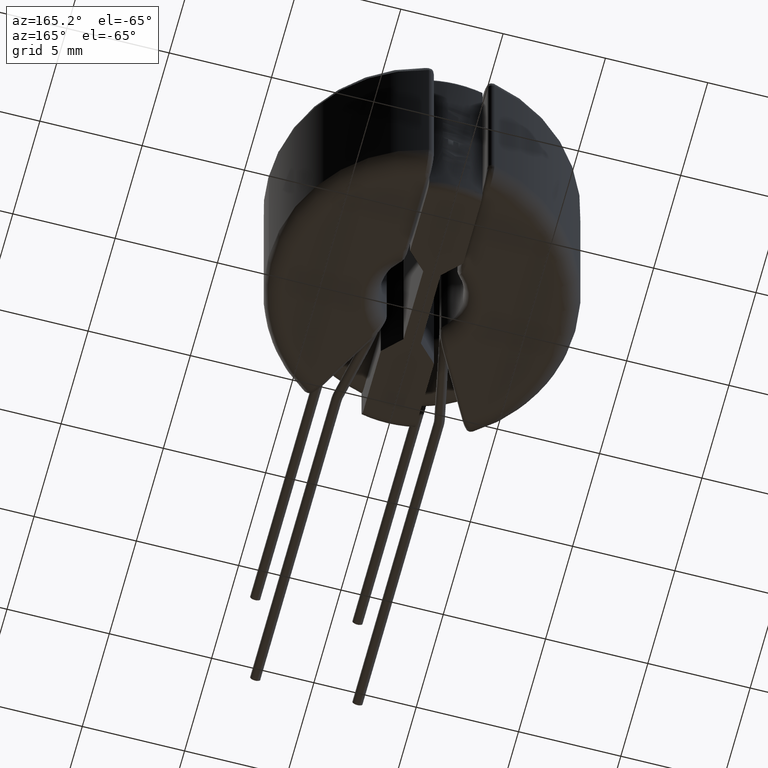
[diagram: clean part render]
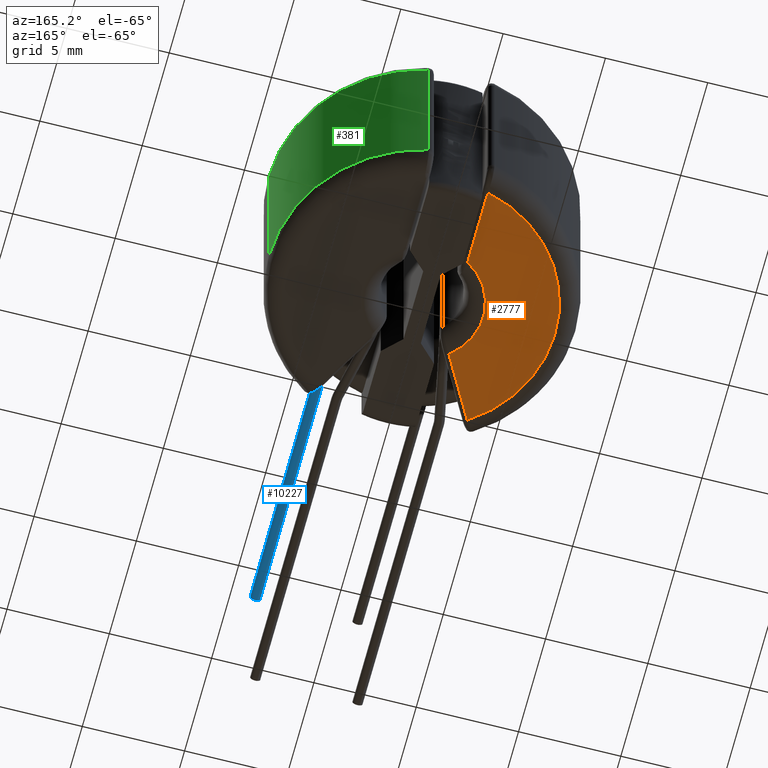
[diagram: same view with three faces highlighted in distinct colors, each labeled with its STEP entity id]
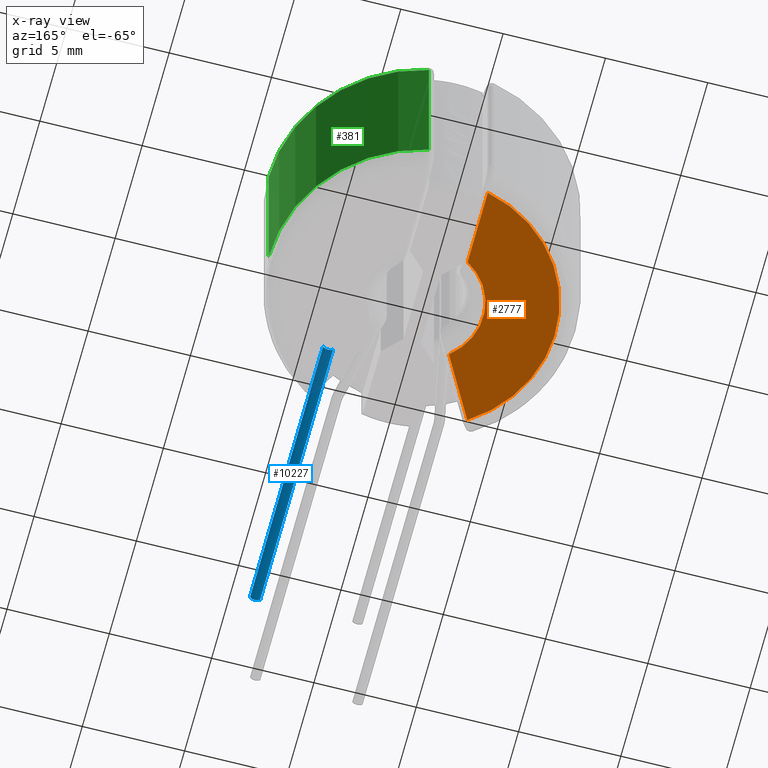
[diagram: x-ray of the same camera — body ghosted, the three highlighted faces saturated]
A machine part, auxiliary view with three faces highlighted in distinct colors.
The next image is the same camera in x-ray (body ghosted, the three faces saturated) — at least one of them is partly hidden behind the body in this view.
Their STEP definitions:

[orange] entity #2777 — the highlighted planar face has unit normal (0, 0, 1).
#20 = VERTEX_POINT ( 'NONE', #826 ) ;
#375 = LINE ( 'NONE', #8217, #747 ) ;
#610 = ORIENTED_EDGE ( 'NONE', *, *, #1816, .T. ) ;
#747 = VECTOR ( 'NONE', #7774, 1000.000000000000000 ) ;
#821 = DIRECTION ( 'NONE',  ( 0.0000000000000000000, 0.0000000000000000000, 1.000000000000000000 ) ) ;
#822 = DIRECTION ( 'NONE',  ( 1.000000000000000000, 0.0000000000000000000, 0.0000000000000000000 ) ) ;
#826 = CARTESIAN_POINT ( 'NONE',  ( -1.922783364836486708, -2.302803537410014645, -5.450000000000000178 ) ) ;
#945 = ORIENTED_EDGE ( 'NONE', *, *, #2721, .T. ) ;
#1296 = CARTESIAN_POINT ( 'NONE',  ( -1.549999999999996936, -1.841640399476882235E-16, -5.450000000000000178 ) ) ;
#1447 = CARTESIAN_POINT ( 'NONE',  ( 0.0000000000000000000, 0.0000000000000000000, -5.450000000000000178 ) ) ;
#1816 = EDGE_CURVE ( 'NONE', #7610, #20, #6987, .T. ) ;
#1830 = VECTOR ( 'NONE', #9563, 1000.000000000000000 ) ;
#1995 = AXIS2_PLACEMENT_3D ( 'NONE', #10670, #821, #4113 ) ;
#2490 = LINE ( 'NONE', #1296, #1830 ) ;
#2721 = EDGE_CURVE ( 'NONE', #20, #9626, #375, .T. ) ;
#2777 = ADVANCED_FACE ( 'NONE', ( #3998 ), #10179, .F. ) ;
#3650 = ORIENTED_EDGE ( 'NONE', *, *, #9175, .T. ) ;
#3835 = VERTEX_POINT ( 'NONE', #6445 ) ;
#3971 = DIRECTION ( 'NONE',  ( 1.000000000000000000, 0.0000000000000000000, -0.0000000000000000000 ) ) ;
#3998 = FACE_OUTER_BOUND ( 'NONE', #6889, .T. ) ;
#4079 = DIRECTION ( 'NONE',  ( -0.0000000000000000000, -0.0000000000000000000, -1.000000000000000000 ) ) ;
#4113 = DIRECTION ( 'NONE',  ( 1.000000000000000000, 0.0000000000000000000, 0.0000000000000000000 ) ) ;
#5363 = EDGE_CURVE ( 'NONE', #3835, #7610, #2490, .T. ) ;
#5477 = AXIS2_PLACEMENT_3D ( 'NONE', #6647, #4079, #822 ) ;
#6365 = AXIS2_PLACEMENT_3D ( 'NONE', #1447, #8059, #3971 ) ;
#6445 = CARTESIAN_POINT ( 'NONE',  ( -1.549999999999997602, 6.312487623750243415, -5.450000000000000178 ) ) ;
#6647 = CARTESIAN_POINT ( 'NONE',  ( 0.0000000000000000000, 0.0000000000000000000, -5.450000000000000178 ) ) ;
#6868 = CARTESIAN_POINT ( 'NONE',  ( -1.549999999999997158, 2.568559907808265930, -5.450000000000000178 ) ) ;
#6889 = EDGE_LOOP ( 'NONE', ( #610, #945, #3650, #8794 ) ) ;
#6987 = CIRCLE ( 'NONE', #1995, 2.999999999999999556 ) ;
#7610 = VERTEX_POINT ( 'NONE', #6868 ) ;
#7743 = CIRCLE ( 'NONE', #5477, 6.500000000000000000 ) ;
#7774 = DIRECTION ( 'NONE',  ( -0.4851771749323758320, -0.8744158672649066100, 0.0000000000000000000 ) ) ;
#8059 = DIRECTION ( 'NONE',  ( 0.0000000000000000000, 0.0000000000000000000, 1.000000000000000000 ) ) ;
#8217 = CARTESIAN_POINT ( 'NONE',  ( -0.4932095208218149063, 0.2736615504366004537, -5.450000000000000178 ) ) ;
#8794 = ORIENTED_EDGE ( 'NONE', *, *, #5363, .T. ) ;
#8932 = CARTESIAN_POINT ( 'NONE',  ( -3.634965081610503468, -5.388601753281861306, -5.450000000000000178 ) ) ;
#9175 = EDGE_CURVE ( 'NONE', #9626, #3835, #7743, .T. ) ;
#9563 = DIRECTION ( 'NONE',  ( 1.188155096436700705E-16, -1.000000000000000000, 0.0000000000000000000 ) ) ;
#9626 = VERTEX_POINT ( 'NONE', #8932 ) ;
#10179 = PLANE ( 'NONE',  #6365 ) ;
#10670 = CARTESIAN_POINT ( 'NONE',  ( 0.0000000000000000000, 0.0000000000000000000, -5.450000000000000178 ) ) ;

[blue] entity #10227 — the highlighted cylindrical surface (edge-blend (fillet) strip) has radius 0.25 mm, axis along (-0, -1, 0).
#91 = CARTESIAN_POINT ( 'NONE',  ( 2.749999999999996447, -6.399999999999995914, 4.500000000000000000 ) ) ;
#457 = CARTESIAN_POINT ( 'NONE',  ( 2.749999999999993783, -21.39999999999999858, 4.500000000000000000 ) ) ;
#586 = AXIS2_PLACEMENT_3D ( 'NONE', #6550, #4807, #9767 ) ;
#710 = ORIENTED_EDGE ( 'NONE', *, *, #5129, .T. ) ;
#1046 = CIRCLE ( 'NONE', #1779, 0.2500000000000002220 ) ;
#1305 = LINE ( 'NONE', #91, #7741 ) ;
#1748 = DIRECTION ( 'NONE',  ( -1.734723475976807094E-16, -1.000000000000000000, 0.0000000000000000000 ) ) ;
#1779 = AXIS2_PLACEMENT_3D ( 'NONE', #2473, #10742, #8246 ) ;
#1814 = EDGE_CURVE ( 'NONE', #2747, #9215, #1046, .T. ) ;
#1928 = CARTESIAN_POINT ( 'NONE',  ( 2.249999999999995115, -7.900000000000000355, 4.500000000000000000 ) ) ;
#2473 = CARTESIAN_POINT ( 'NONE',  ( 2.499999999999995559, -7.900000000000000355, 4.500000000000000000 ) ) ;
#2567 = CARTESIAN_POINT ( 'NONE',  ( 2.249999999999996003, -6.399999999999995914, 4.500000000000000000 ) ) ;
#2738 = ORIENTED_EDGE ( 'NONE', *, *, #4473, .F. ) ;
#2747 = VERTEX_POINT ( 'NONE', #1928 ) ;
#2848 = DIRECTION ( 'NONE',  ( -1.734723475976807094E-16, -1.000000000000000000, 0.0000000000000000000 ) ) ;
#3083 = CYLINDRICAL_SURFACE ( 'NONE', #6405, 0.2500000000000002220 ) ;
#3692 = DIRECTION ( 'NONE',  ( -1.000000000000000000, 0.0000000000000000000, 0.0000000000000000000 ) ) ;
#3816 = VERTEX_POINT ( 'NONE', #457 ) ;
#4185 = CARTESIAN_POINT ( 'NONE',  ( 2.749999999999996447, -7.900000000000000355, 4.500000000000000000 ) ) ;
#4400 = ORIENTED_EDGE ( 'NONE', *, *, #1814, .T. ) ;
#4473 = EDGE_CURVE ( 'NONE', #8360, #3816, #6346, .T. ) ;
#4807 = DIRECTION ( 'NONE',  ( -0.0000000000000000000, -1.000000000000000000, -0.0000000000000000000 ) ) ;
#5129 = EDGE_CURVE ( 'NONE', #9215, #3816, #1305, .T. ) ;
#6346 = CIRCLE ( 'NONE', #586, 0.2500000000000002220 ) ;
#6405 = AXIS2_PLACEMENT_3D ( 'NONE', #6931, #2848, #3692 ) ;
#6550 = CARTESIAN_POINT ( 'NONE',  ( 2.499999999999993339, -21.39999999999999858, 4.500000000000000000 ) ) ;
#6693 = LINE ( 'NONE', #2567, #8005 ) ;
#6931 = CARTESIAN_POINT ( 'NONE',  ( 2.499999999999996003, -6.399999999999995914, 4.500000000000000000 ) ) ;
#7003 = ORIENTED_EDGE ( 'NONE', *, *, #9431, .F. ) ;
#7120 = EDGE_LOOP ( 'NONE', ( #4400, #710, #2738, #7003 ) ) ;
#7741 = VECTOR ( 'NONE', #1748, 1000.000000000000000 ) ;
#8005 = VECTOR ( 'NONE', #8336, 1000.000000000000000 ) ;
#8246 = DIRECTION ( 'NONE',  ( 0.0000000000000000000, 0.0000000000000000000, 1.000000000000000000 ) ) ;
#8336 = DIRECTION ( 'NONE',  ( -1.734723475976807094E-16, -1.000000000000000000, 0.0000000000000000000 ) ) ;
#8360 = VERTEX_POINT ( 'NONE', #10168 ) ;
#9215 = VERTEX_POINT ( 'NONE', #4185 ) ;
#9431 = EDGE_CURVE ( 'NONE', #2747, #8360, #6693, .T. ) ;
#9658 = FACE_OUTER_BOUND ( 'NONE', #7120, .T. ) ;
#9767 = DIRECTION ( 'NONE',  ( 0.0000000000000000000, 0.0000000000000000000, 1.000000000000000000 ) ) ;
#10168 = CARTESIAN_POINT ( 'NONE',  ( 2.249999999999993339, -21.39999999999999858, 4.500000000000000000 ) ) ;
#10227 = ADVANCED_FACE ( 'NONE', ( #9658 ), #3083, .T. ) ;
#10742 = DIRECTION ( 'NONE',  ( -0.0000000000000000000, -1.000000000000000000, -0.0000000000000000000 ) ) ;

[green] entity #381 — the highlighted cylindrical surface (partial cylindrical patch) has radius 7.5 mm, axis along (0, -0, -1).
#381 = ADVANCED_FACE ( 'NONE', ( #10072 ), #8378, .T. ) ;
#683 = CARTESIAN_POINT ( 'NONE',  ( 7.500000000000000000, 0.0000000000000000000, -4.449999999999999289 ) ) ;
#866 = DIRECTION ( 'NONE',  ( -1.000000000000000000, 0.0000000000000000000, 0.0000000000000000000 ) ) ;
#1197 = VERTEX_POINT ( 'NONE', #6506 ) ;
#1624 = AXIS2_PLACEMENT_3D ( 'NONE', #8251, #9989, #866 ) ;
#1677 = LINE ( 'NONE', #3197, #5154 ) ;
#2260 = ORIENTED_EDGE ( 'NONE', *, *, #2586, .F. ) ;
#2342 = LINE ( 'NONE', #6356, #7617 ) ;
#2586 = EDGE_CURVE ( 'NONE', #8270, #5861, #2342, .T. ) ;
#2655 = EDGE_CURVE ( 'NONE', #1197, #4495, #1677, .T. ) ;
#3197 = CARTESIAN_POINT ( 'NONE',  ( 7.500000000000000000, 0.0000000000000000000, 5.450000000000000178 ) ) ;
#3312 = DIRECTION ( 'NONE',  ( -1.000000000000000000, 8.881784197001252323E-16, 0.0000000000000000000 ) ) ;
#3978 = DIRECTION ( 'NONE',  ( 0.0000000000000000000, -0.0000000000000000000, -1.000000000000000000 ) ) ;
#4086 = DIRECTION ( 'NONE',  ( 0.0000000000000000000, -0.0000000000000000000, -1.000000000000000000 ) ) ;
#4286 = CARTESIAN_POINT ( 'NONE',  ( 1.603448275862066952, 7.326592224672734410, -4.449999999999999289 ) ) ;
#4477 = ORIENTED_EDGE ( 'NONE', *, *, #2655, .T. ) ;
#4495 = VERTEX_POINT ( 'NONE', #683 ) ;
#4865 = EDGE_CURVE ( 'NONE', #5861, #4495, #10109, .T. ) ;
#5154 = VECTOR ( 'NONE', #4086, 1000.000000000000000 ) ;
#5501 = EDGE_CURVE ( 'NONE', #1197, #8270, #9573, .T. ) ;
#5814 = DIRECTION ( 'NONE',  ( 0.0000000000000000000, -0.0000000000000000000, -1.000000000000000000 ) ) ;
#5861 = VERTEX_POINT ( 'NONE', #4286 ) ;
#6356 = CARTESIAN_POINT ( 'NONE',  ( 1.603448275862066952, 7.326592224672734410, 5.450000000000000178 ) ) ;
#6439 = AXIS2_PLACEMENT_3D ( 'NONE', #9039, #10719, #3312 ) ;
#6479 = ORIENTED_EDGE ( 'NONE', *, *, #5501, .F. ) ;
#6506 = CARTESIAN_POINT ( 'NONE',  ( 7.500000000000000000, 0.0000000000000000000, 4.450000000000000178 ) ) ;
#7161 = CARTESIAN_POINT ( 'NONE',  ( 1.603448275862066952, 7.326592224672734410, 4.450000000000000178 ) ) ;
#7617 = VECTOR ( 'NONE', #3978, 1000.000000000000000 ) ;
#8251 = CARTESIAN_POINT ( 'NONE',  ( 0.0000000000000000000, 0.0000000000000000000, -4.449999999999999289 ) ) ;
#8270 = VERTEX_POINT ( 'NONE', #7161 ) ;
#8378 = CYLINDRICAL_SURFACE ( 'NONE', #10554, 7.500000000000000000 ) ;
#8799 = EDGE_LOOP ( 'NONE', ( #6479, #4477, #8913, #2260 ) ) ;
#8913 = ORIENTED_EDGE ( 'NONE', *, *, #4865, .F. ) ;
#9039 = CARTESIAN_POINT ( 'NONE',  ( 0.0000000000000000000, 0.0000000000000000000, 4.450000000000000178 ) ) ;
#9573 = CIRCLE ( 'NONE', #6439, 7.500000000000000000 ) ;
#9790 = CARTESIAN_POINT ( 'NONE',  ( 0.0000000000000000000, 0.0000000000000000000, 5.450000000000000178 ) ) ;
#9989 = DIRECTION ( 'NONE',  ( -0.0000000000000000000, -0.0000000000000000000, -1.000000000000000000 ) ) ;
#10072 = FACE_OUTER_BOUND ( 'NONE', #8799, .T. ) ;
#10109 = CIRCLE ( 'NONE', #1624, 7.500000000000000000 ) ;
#10554 = AXIS2_PLACEMENT_3D ( 'NONE', #9790, #5814, #10741 ) ;
#10719 = DIRECTION ( 'NONE',  ( 0.0000000000000000000, 0.0000000000000000000, 1.000000000000000000 ) ) ;
#10741 = DIRECTION ( 'NONE',  ( 1.000000000000000000, 0.0000000000000000000, 0.0000000000000000000 ) ) ;